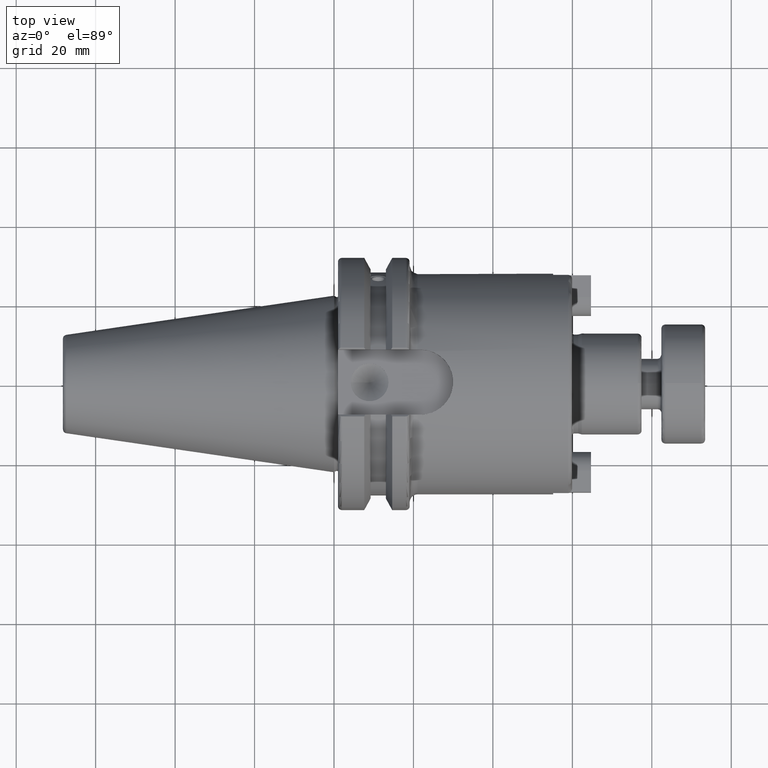
[diagram: clean part render]
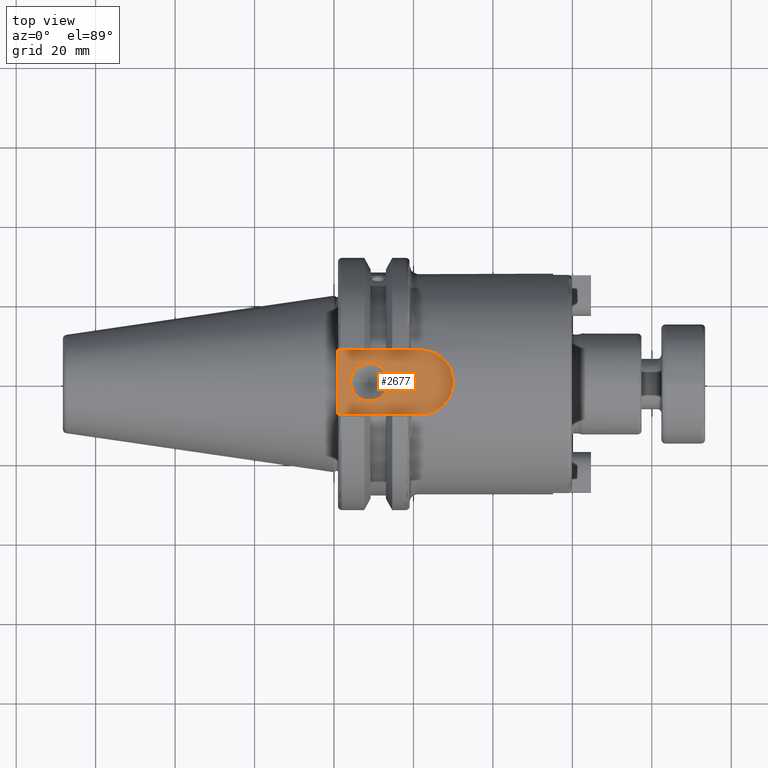
[diagram: same view with one face highlighted and labeled with its STEP entity id]
A machine part, top view. The second image highlights one B-rep face of the part: STEP entity #2677.
In plain terms, the highlighted planar face has unit normal (0, 0, 1).
Its self-contained STEP definition (entity closure, byte-faithful):
#150=FACE_BOUND('',#498,.T.);
#197=PLANE('',#3044);
#327=FACE_OUTER_BOUND('',#497,.T.);
#497=EDGE_LOOP('',(#2272,#2273,#2274,#2275));
#498=EDGE_LOOP('',(#2276));
#576=CIRCLE('',#2852,8.19);
#654=CIRCLE('',#3036,4.7625);
#785=LINE('',#4811,#953);
#798=LINE('',#4917,#966);
#810=LINE('',#4964,#978);
#953=VECTOR('',#3564,10.);
#966=VECTOR('',#3601,10.);
#978=VECTOR('',#3639,10.);
#1108=VERTEX_POINT('',#4068);
#1109=VERTEX_POINT('',#4070);
#1238=VERTEX_POINT('',#4810);
#1257=VERTEX_POINT('',#4916);
#1274=VERTEX_POINT('',#4987);
#1373=EDGE_CURVE('',#1109,#1108,#576,.T.);
#1561=EDGE_CURVE('',#1238,#1109,#785,.T.);
#1590=EDGE_CURVE('',#1238,#1257,#798,.T.);
#1612=EDGE_CURVE('',#1108,#1257,#810,.T.);
#1621=EDGE_CURVE('',#1274,#1274,#654,.T.);
#2272=ORIENTED_EDGE('',*,*,#1590,.F.);
#2273=ORIENTED_EDGE('',*,*,#1561,.T.);
#2274=ORIENTED_EDGE('',*,*,#1373,.T.);
#2275=ORIENTED_EDGE('',*,*,#1612,.T.);
#2276=ORIENTED_EDGE('',*,*,#1621,.T.);
#2677=ADVANCED_FACE('',(#327,#150),#197,.T.);
#2852=AXIS2_PLACEMENT_3D('',#4071,#3205,#3206);
#3036=AXIS2_PLACEMENT_3D('',#4988,#3667,#3668);
#3044=AXIS2_PLACEMENT_3D('',#4997,#3684,#3685);
#3205=DIRECTION('center_axis',(0.,0.,1.));
#3206=DIRECTION('ref_axis',(1.08446693492079E-15,-1.,0.));
#3564=DIRECTION('',(1.,1.60051373083876E-16,0.));
#3601=DIRECTION('',(0.,1.,0.));
#3639=DIRECTION('',(-1.,-1.06700915389251E-16,0.));
#3667=DIRECTION('center_axis',(0.,0.,-1.));
#3668=DIRECTION('ref_axis',(1.,0.,0.));
#3684=DIRECTION('center_axis',(0.,0.,1.));
#3685=DIRECTION('ref_axis',(1.,0.,0.));
#4068=CARTESIAN_POINT('',(21.81,8.19,25.));
#4070=CARTESIAN_POINT('',(21.81,-8.19000000000001,25.));
#4071=CARTESIAN_POINT('Origin',(21.81,3.78117769356553E-15,25.));
#4810=CARTESIAN_POINT('',(1.00000000000001,-8.19000000000001,25.));
#4811=CARTESIAN_POINT('',(1.00000000000001,-8.19000000000001,25.));
#4916=CARTESIAN_POINT('',(0.999999999999996,8.19,25.));
#4917=CARTESIAN_POINT('',(1.,15.875,25.));
#4964=CARTESIAN_POINT('',(21.81,8.19,25.));
#4987=CARTESIAN_POINT('',(4.1966,-5.83238038093927E-16,25.));
#4988=CARTESIAN_POINT('Origin',(8.9591,0.,25.));
#4997=CARTESIAN_POINT('Origin',(14.62,0.,25.));